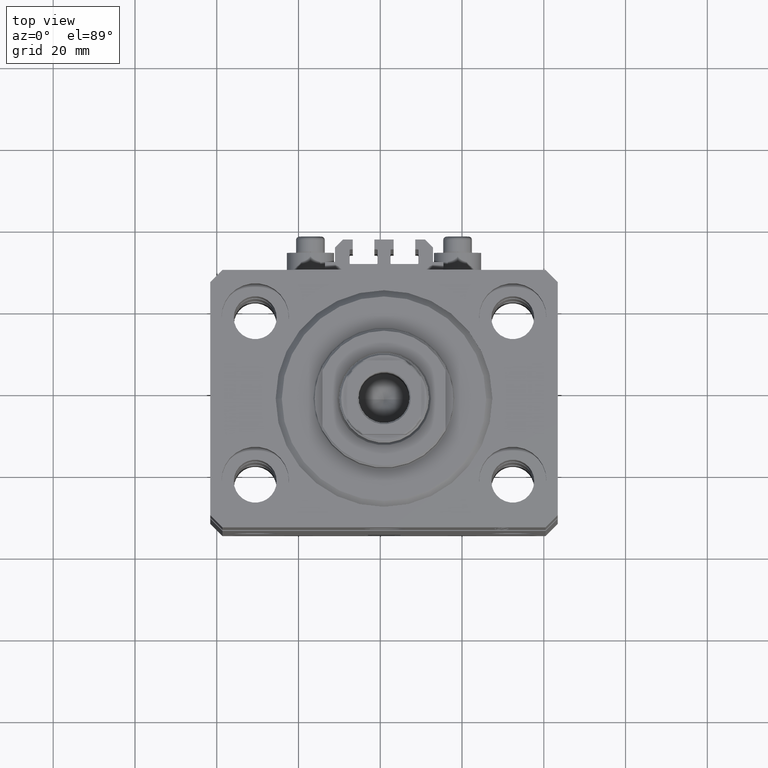
[diagram: clean part render]
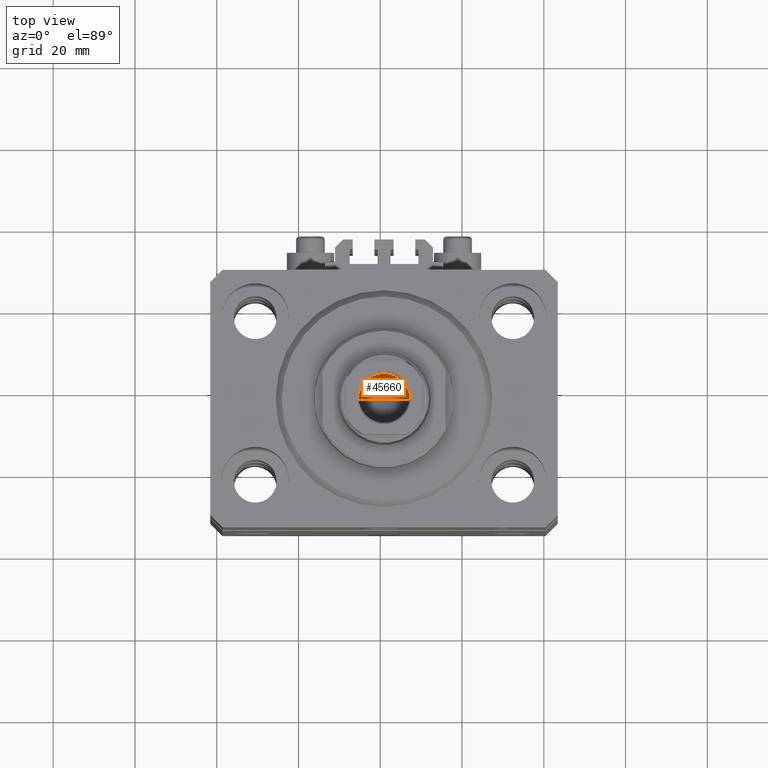
[diagram: same view with one face highlighted and labeled with its STEP entity id]
A machine part, top view. The second image highlights one B-rep face of the part: STEP entity #45660.
In plain terms, the highlighted conical surface has half-angle 59 deg.
Its self-contained STEP definition (entity closure, byte-faithful):
#848 = VERTEX_POINT ( 'NONE', #2763 ) ;
#895 = EDGE_LOOP ( 'NONE', ( #45904, #17170, #27065 ) ) ;
#1279 = LINE ( 'NONE', #15562, #12033 ) ;
#2763 = CARTESIAN_POINT ( 'NONE',  ( -7.434177670704979810E-15, 0.000000000000000000, 99.84462113107774428 ) ) ;
#3095 = DIRECTION ( 'NONE',  ( -0.000000000000000000, -0.000000000000000000, 1.000000000000000000 ) ) ;
#5942 = VECTOR ( 'NONE', #18983, 1000.000000000000000 ) ;
#8092 = VERTEX_POINT ( 'NONE', #26309 ) ;
#9040 = AXIS2_PLACEMENT_3D ( 'NONE', #14172, #3095, #24748 ) ;
#12033 = VECTOR ( 'NONE', #26616, 1000.000000000000000 ) ;
#14172 = CARTESIAN_POINT ( 'NONE',  ( 0.000000000000000000, 0.000000000000000000, 103.5999999999999943 ) ) ;
#15061 = LINE ( 'NONE', #41367, #5942 ) ;
#15562 = CARTESIAN_POINT ( 'NONE',  ( 6.249999999999993783, 0.000000000000000000, 103.5999999999999943 ) ) ;
#16898 = CONICAL_SURFACE ( 'NONE', #9040, 6.249999999999993783, 1.029744258676652979 ) ;
#16977 = DIRECTION ( 'NONE',  ( 1.000000000000000000, 0.000000000000000000, 0.000000000000000000 ) ) ;
#17170 = ORIENTED_EDGE ( 'NONE', *, *, #30603, .T. ) ;
#18983 = DIRECTION ( 'NONE',  ( -0.8571673007021115565, 1.049727191138617710E-16, 0.5150380749100554878 ) ) ;
#19113 = AXIS2_PLACEMENT_3D ( 'NONE', #19260, #30348, #16977 ) ;
#19260 = CARTESIAN_POINT ( 'NONE',  ( 0.000000000000000000, 0.000000000000000000, 103.5999999999999943 ) ) ;
#19895 = CIRCLE ( 'NONE', #19113, 6.249999999999993783 ) ;
#24748 = DIRECTION ( 'NONE',  ( 1.000000000000000000, 0.000000000000000000, 0.000000000000000000 ) ) ;
#26309 = CARTESIAN_POINT ( 'NONE',  ( 6.249999999999993783, 0.000000000000000000, 103.5999999999999943 ) ) ;
#26616 = DIRECTION ( 'NONE',  ( 0.8571673007021115565, 0.000000000000000000, 0.5150380749100554878 ) ) ;
#27065 = ORIENTED_EDGE ( 'NONE', *, *, #27367, .T. ) ;
#27367 = EDGE_CURVE ( 'NONE', #8092, #38284, #19895, .T. ) ;
#30348 = DIRECTION ( 'NONE',  ( -0.000000000000000000, -0.000000000000000000, 1.000000000000000000 ) ) ;
#30603 = EDGE_CURVE ( 'NONE', #848, #8092, #1279, .T. ) ;
#38284 = VERTEX_POINT ( 'NONE', #42620 ) ;
#41367 = CARTESIAN_POINT ( 'NONE',  ( -6.249999999999993783, 7.654042494670949718E-16, 103.5999999999999943 ) ) ;
#42620 = CARTESIAN_POINT ( 'NONE',  ( -6.249999999999993783, 7.654042494670949718E-16, 103.5999999999999943 ) ) ;
#45660 = ADVANCED_FACE ( 'NONE', ( #47122 ), #16898, .F. ) ;
#45904 = ORIENTED_EDGE ( 'NONE', *, *, #48508, .F. ) ;
#47122 = FACE_OUTER_BOUND ( 'NONE', #895, .T. ) ;
#48508 = EDGE_CURVE ( 'NONE', #848, #38284, #15061, .T. ) ;